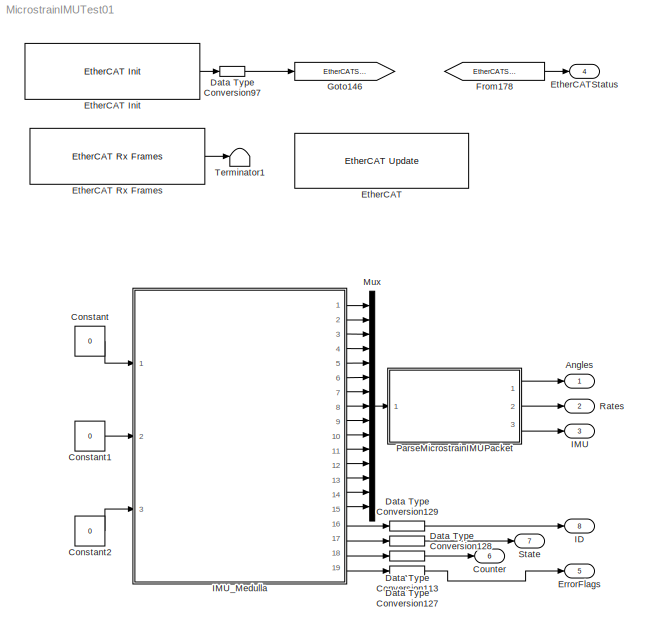
MODEL MicrostrainIMUTest01
KIND model
CONFIG InitFcn = IMU_Alignment_Params = [0 90 180];\n
BLOCK [Outport] Angles
  IconDisplay = Port number
  SID = 26
BLOCK [Constant] Constant
  SID = 28
  Value = 0
BLOCK [Constant] Constant1
  SID = 29
  Value = 0
BLOCK [Constant] Constant2
  SID = 30
  Value = 0
BLOCK [Outport] Counter
  IconDisplay = Port number
  Port = 6
  SID = 130
BLOCK [DataTypeConversion] Data Type Conversion113
  OutDataTypeStr = double
  RndMeth = Floor
  SID = 1
  SaturateOnIntegerOverflow = off
BLOCK [DataTypeConversion] Data Type Conversion127
  OutDataTypeStr = double
  RndMeth = Floor
  SID = 2
  SaturateOnIntegerOverflow = off
BLOCK [DataTypeConversion] Data Type Conversion128
  OutDataTypeStr = double
  RndMeth = Floor
  SID = 3
  SaturateOnIntegerOverflow = off
BLOCK [DataTypeConversion] Data Type Conversion129
  OutDataTypeStr = double
  RndMeth = Floor
  SID = 4
  SaturateOnIntegerOverflow = off
BLOCK [DataTypeConversion] Data Type Conversion97
  OutDataTypeStr = double
  RndMeth = Floor
  SID = 18
  SaturateOnIntegerOverflow = off
BLOCK [Outport] ErrorFlags
  IconDisplay = Port number
  Port = 5
  SID = 129
BLOCK [Reference] EtherCAT  REF=xpcethercatlib/EtherCAT Update 
  Ports = []
  Priority = 4
  SID = 19
  SourceBlock = xpcethercatlib/EtherCAT Update
  SourceType = xpcethercat_update
  device_id = 0
  task_id_list = [1]
  task_priorities = [1500]
  task_rates = [1]
BLOCK [Reference] EtherCAT Init  REF=xpcethercatlib/EtherCAT Init 
  Ports = [0, 1]
  Priority = 0
  SID = 20
  SourceBlock = xpcethercatlib/EtherCAT Init
  SourceType = xpcethercatinit
  config_file = 'microstrain_imu_eni.xml'
  device_id = 0
  enaDC = on
  errRptLevel = 0
  pci_bus = 4
  pci_slot = 4
  sample_time = -1
BLOCK [Reference] EtherCAT Rx Frames  REF=xpcethercatlib/EtherCAT Rx Frames 
  Ports = [0, 1]
  Priority = 1
  SID = 21
  SourceBlock = xpcethercatlib/EtherCAT Rx Frames
  SourceType = xpcethercat_rcvframes
  device_id = 0
  sample_time = 0
BLOCK [Outport] EtherCATStatus
  IconDisplay = Port number
  Port = 4
  SID = 25
BLOCK [From] From178
  GotoTag = EtherCATStatus
  SID = 22
BLOCK [Goto] Goto146
  GotoTag = EtherCATStatus
  SID = 23
BLOCK [Outport] ID
  IconDisplay = Port number
  Port = 8
  SID = 132
BLOCK [Outport] IMU
  IconDisplay = Port number
  Port = 3
  SID = 17
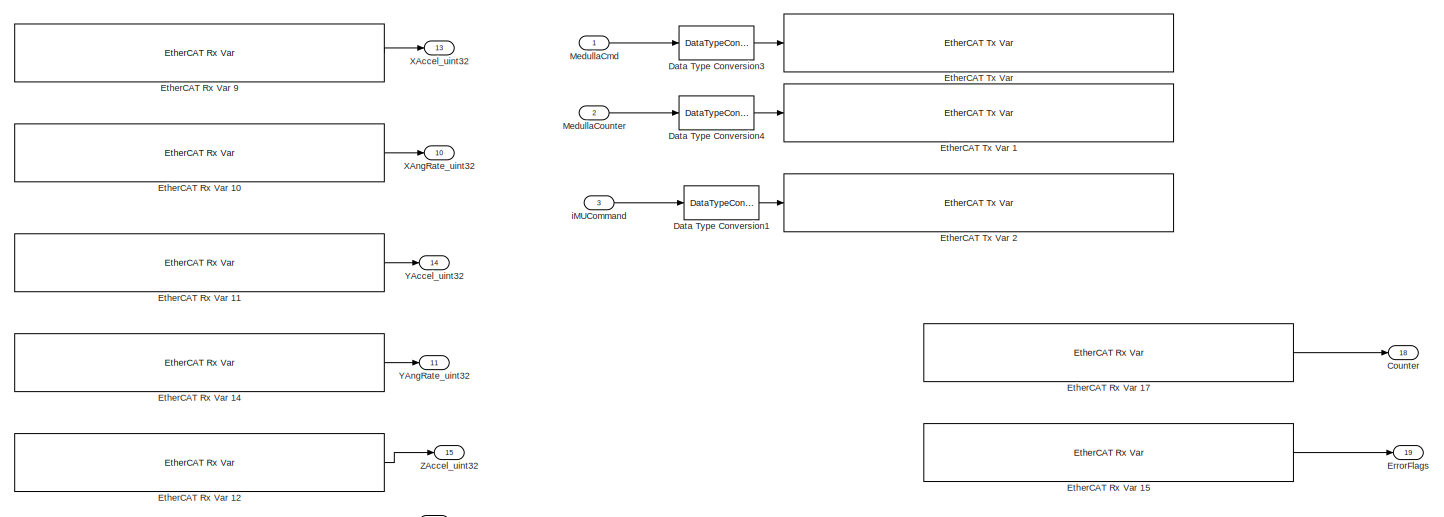
[diagram: IMU_Medulla - part 1/3, full width, top band]
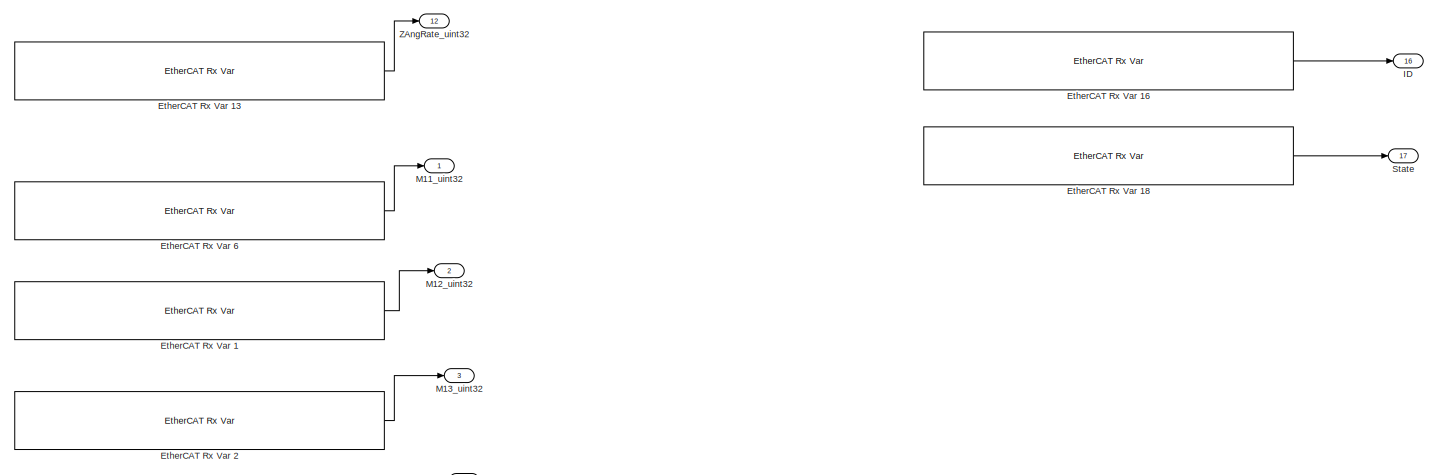
[diagram: IMU_Medulla - part 2/3, full width, middle band]
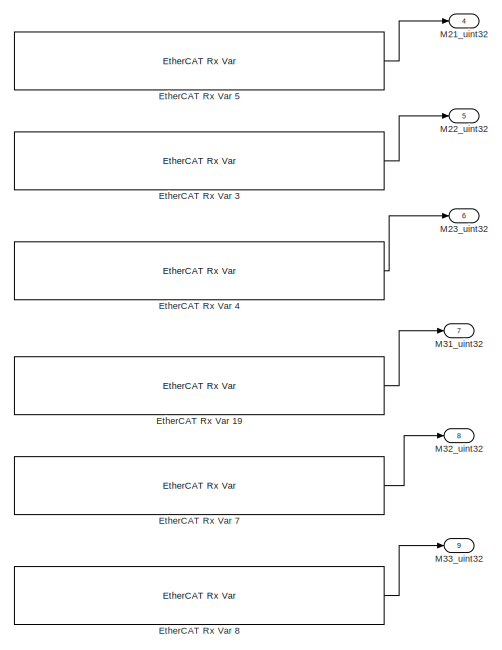
[diagram: IMU_Medulla - part 3/3, bottom left region]
BLOCK [SubSystem] IMU_Medulla
  FunctionWithSeparateData = off
  MaskHideContents = off
  MinAlgLoopOccurrences = off
  Opaque = off
  Ports = [3, 19]
  PropExecContextOutsideSubsystem = off
  RTWSystemCode = Auto
  RequestExecContextInheritance = off
  SID = 14
BLOCK [Outport] IMU_Medulla/Counter
  IconDisplay = Port number
  Port = 18
  SID = 91
BLOCK [DataTypeConversion] IMU_Medulla/Data Type Conversion1
  OutDataTypeStr = uint16
  RndMeth = Floor
  SID = 34
  SaturateOnIntegerOverflow = off
BLOCK [DataTypeConversion] IMU_Medulla/Data Type Conversion3
  OutDataTypeStr = uint8
  RndMeth = Floor
  SID = 35
  SaturateOnIntegerOverflow = off
BLOCK [DataTypeConversion] IMU_Medulla/Data Type Conversion4
  OutDataTypeStr = uint16
  RndMeth = Floor
  SID = 36
  SaturateOnIntegerOverflow = off
BLOCK [Outport] IMU_Medulla/ErrorFlags
  IconDisplay = Port number
  Port = 19
  SID = 92
BLOCK [Reference] IMU_Medulla/EtherCAT Rx Var 1  REF=xpcethercatlib/EtherCAT Rx Var 
  Ports = [0, 1]
  Priority = 2
  SID = 52
  SourceBlock = xpcethercatlib/EtherCAT Rx Var
  SourceType = xpcethercat_rx_var
  device_id = 0
  sample_time = 0.001000
  sig_dim = 1
  sig_name = Box 2 (ATRIAS 2.1 Microstrain IMU (Medulla 1.5)).M.M12
  sig_offset = 720
  sig_type = uint32
  type_size = 32
BLOCK [Reference] IMU_Medulla/EtherCAT Rx Var 10  REF=xpcethercatlib/EtherCAT Rx Var 
  Ports = [0, 1]
  Priority = 2
  SID = 53
  SourceBlock = xpcethercatlib/EtherCAT Rx Var
  SourceType = xpcethercat_rx_var
  device_id = 0
  sample_time = 0.001000
  sig_dim = 1
  sig_name = Box 2 (ATRIAS 2.1 Microstrain IMU (Medulla 1.5)).Xaxes.XAngRate
  sig_offset = 496
  sig_type = uint32
  type_size = 32
BLOCK [Reference] IMU_Medulla/EtherCAT Rx Var 11  REF=xpcethercatlib/EtherCAT Rx Var 
  Ports = [0, 1]
  Priority = 2
  SID = 54
  SourceBlock = xpcethercatlib/EtherCAT Rx Var
  SourceType = xpcethercat_rx_var
  device_id = 0
  sample_time = 0.001000
  sig_dim = 1
  sig_name = Box 2 (ATRIAS 2.1 Microstrain IMU (Medulla 1.5)).Yaxes.YAccel
  sig_offset = 592
  sig_type = uint32
  type_size = 32
BLOCK [Reference] IMU_Medulla/EtherCAT Rx Var 12  REF=xpcethercatlib/EtherCAT Rx Var 
  Ports = [0, 1]
  Priority = 2
  SID = 55
  SourceBlock = xpcethercatlib/EtherCAT Rx Var
  SourceType = xpcethercat_rx_var
  device_id = 0
  sample_time = 0.001000
  sig_dim = 1
  sig_name = Box 2 (ATRIAS 2.1 Microstrain IMU (Medulla 1.5)).Zaxes.ZAccel
  sig_offset = 656
  sig_type = uint32
  type_size = 32
BLOCK [Reference] IMU_Medulla/EtherCAT Rx Var 13  REF=xpcethercatlib/EtherCAT Rx Var 
  Ports = [0, 1]
  Priority = 2
  SID = 56
  SourceBlock = xpcethercatlib/EtherCAT Rx Var
  SourceType = xpcethercat_rx_var
  device_id = 0
  sample_time = 0.001000
  sig_dim = 1
  sig_name = Box 2 (ATRIAS 2.1 Microstrain IMU (Medulla 1.5)).Zaxes.ZAngRate
  sig_offset = 624
  sig_type = uint32
  type_size = 32
BLOCK [Reference] IMU_Medulla/EtherCAT Rx Var 14  REF=xpcethercatlib/EtherCAT Rx Var 
  Ports = [0, 1]
  Priority = 2
  SID = 57
  SourceBlock = xpcethercatlib/EtherCAT Rx Var
  SourceType = xpcethercat_rx_var
  device_id = 0
  sample_time = 0.001000
  sig_dim = 1
  sig_name = Box 2 (ATRIAS 2.1 Microstrain IMU (Medulla 1.5)).Yaxes.YAngRate
  sig_offset = 560
  sig_type = uint32
  type_size = 32
BLOCK [Reference] IMU_Medulla/EtherCAT Rx Var 15  REF=xpcethercatlib/EtherCAT Rx Var 
  Ports = [0, 1]
  Priority = 2
  SID = 58
  SourceBlock = xpcethercatlib/EtherCAT Rx Var
  SourceType = xpcethercat_rx_var
  device_id = 0
  sample_time = 0.001000
  sig_dim = 1
  sig_name = Box 2 (ATRIAS 2.1 Microstrain IMU (Medulla 1.5)).uController Status.Error Flags
  sig_offset = 488
  sig_type = uint8
  type_size = 8
BLOCK [Reference] IMU_Medulla/EtherCAT Rx Var 16  REF=xpcethercatlib/EtherCAT Rx Var 
  Ports = [0, 1]
  Priority = 2
  SID = 59
  SourceBlock = xpcethercatlib/EtherCAT Rx Var
  SourceType = xpcethercat_rx_var
  device_id = 0
  sample_time = 0.001000
  sig_dim = 1
  sig_name = Box 2 (ATRIAS 2.1 Microstrain IMU (Medulla 1.5)).uController Status.ID
  sig_offset = 464
  sig_type = uint8
  type_size = 8
BLOCK [Reference] IMU_Medulla/EtherCAT Rx Var 17  REF=xpcethercatlib/EtherCAT Rx Var 
  Ports = [0, 1]
  Priority = 2
  SID = 60
  SourceBlock = xpcethercatlib/EtherCAT Rx Var
  SourceType = xpcethercat_rx_var
  device_id = 0
  sample_time = 0.001000
  sig_dim = 1
  sig_name = Box 2 (ATRIAS 2.1 Microstrain IMU (Medulla 1.5)).uController Status.Counter
  sig_offset = 480
  sig_type = uint8
  type_size = 8
BLOCK [Reference] IMU_Medulla/EtherCAT Rx Var 18  REF=xpcethercatlib/EtherCAT Rx Var 
  Ports = [0, 1]
  Priority = 2
  SID = 61
  SourceBlock = xpcethercatlib/EtherCAT Rx Var
  SourceType = xpcethercat_rx_var
  device_id = 0
  sample_time = 0.001000
  sig_dim = 1
  sig_name = Box 2 (ATRIAS 2.1 Microstrain IMU (Medulla 1.5)).uController Status.State
  sig_offset = 472
  sig_type = uint8
  type_size = 8
BLOCK [Reference] IMU_Medulla/EtherCAT Rx Var 19  REF=xpcethercatlib/EtherCAT Rx Var 
  Ports = [0, 1]
  Priority = 2
  SID = 62
  SourceBlock = xpcethercatlib/EtherCAT Rx Var
  SourceType = xpcethercat_rx_var
  device_id = 0
  sample_time = 0.001000
  sig_dim = 1
  sig_name = Box 2 (ATRIAS 2.1 Microstrain IMU (Medulla 1.5)).M.M31
  sig_offset = 880
  sig_type = uint32
  type_size = 32
BLOCK [Reference] IMU_Medulla/EtherCAT Rx Var 2  REF=xpcethercatlib/EtherCAT Rx Var 
  Ports = [0, 1]
  Priority = 2
  SID = 63
  SourceBlock = xpcethercatlib/EtherCAT Rx Var
  SourceType = xpcethercat_rx_var
  device_id = 0
  sample_time = 0.001000
  sig_dim = 1
  sig_name = Box 2 (ATRIAS 2.1 Microstrain IMU (Medulla 1.5)).M.M13
  sig_offset = 752
  sig_type = uint32
  type_size = 32
BLOCK [Reference] IMU_Medulla/EtherCAT Rx Var 3  REF=xpcethercatlib/EtherCAT Rx Var 
  Ports = [0, 1]
  Priority = 2
  SID = 64
  SourceBlock = xpcethercatlib/EtherCAT Rx Var
  SourceType = xpcethercat_rx_var
  device_id = 0
  sample_time = 0.001000
  sig_dim = 1
  sig_name = Box 2 (ATRIAS 2.1 Microstrain IMU (Medulla 1.5)).M.M22
  sig_offset = 816
  sig_type = uint32
  type_size = 32
BLOCK [Reference] IMU_Medulla/EtherCAT Rx Var 4  REF=xpcethercatlib/EtherCAT Rx Var 
  Ports = [0, 1]
  Priority = 2
  SID = 65
  SourceBlock = xpcethercatlib/EtherCAT Rx Var
  SourceType = xpcethercat_rx_var
  device_id = 0
  sample_time = 0.001000
  sig_dim = 1
  sig_name = Box 2 (ATRIAS 2.1 Microstrain IMU (Medulla 1.5)).M.M23
  sig_offset = 848
  sig_type = uint32
  type_size = 32
BLOCK [Reference] IMU_Medulla/EtherCAT Rx Var 5  REF=xpcethercatlib/EtherCAT Rx Var 
  Ports = [0, 1]
  Priority = 2
  SID = 66
  SourceBlock = xpcethercatlib/EtherCAT Rx Var
  SourceType = xpcethercat_rx_var
  device_id = 0
  sample_time = 0.001000
  sig_dim = 1
  sig_name = Box 2 (ATRIAS 2.1 Microstrain IMU (Medulla 1.5)).M.M21
  sig_offset = 784
  sig_type = uint32
  type_size = 32
BLOCK [Reference] IMU_Medulla/EtherCAT Rx Var 6  REF=xpcethercatlib/EtherCAT Rx Var 
  Ports = [0, 1]
  Priority = 2
  SID = 67
  SourceBlock = xpcethercatlib/EtherCAT Rx Var
  SourceType = xpcethercat_rx_var
  device_id = 0
  sample_time = 0.001000
  sig_dim = 1
  sig_name = Box 2 (ATRIAS 2.1 Microstrain IMU (Medulla 1.5)).M.M11
  sig_offset = 688
  sig_type = uint32
  type_size = 32
BLOCK [Reference] IMU_Medulla/EtherCAT Rx Var 7  REF=xpcethercatlib/EtherCAT Rx Var 
  Ports = [0, 1]
  Priority = 2
  SID = 68
  SourceBlock = xpcethercatlib/EtherCAT Rx Var
  SourceType = xpcethercat_rx_var
  device_id = 0
  sample_time = 0.001000
  sig_dim = 1
  sig_name = Box 2 (ATRIAS 2.1 Microstrain IMU (Medulla 1.5)).M.M32
  sig_offset = 912
  sig_type = uint32
  type_size = 32
BLOCK [Reference] IMU_Medulla/EtherCAT Rx Var 8  REF=xpcethercatlib/EtherCAT Rx Var 
  Ports = [0, 1]
  Priority = 2
  SID = 69
  SourceBlock = xpcethercatlib/EtherCAT Rx Var
  SourceType = xpcethercat_rx_var
  device_id = 0
  sample_time = 0.001000
  sig_dim = 1
  sig_name = Box 2 (ATRIAS 2.1 Microstrain IMU (Medulla 1.5)).M.M33
  sig_offset = 944
  sig_type = uint32
  type_size = 32
BLOCK [Reference] IMU_Medulla/EtherCAT Rx Var 9  REF=xpcethercatlib/EtherCAT Rx Var 
  Ports = [0, 1]
  Priority = 2
  SID = 70
  SourceBlock = xpcethercatlib/EtherCAT Rx Var
  SourceType = xpcethercat_rx_var
  device_id = 0
  sample_time = 0.001000
  sig_dim = 1
  sig_name = Box 2 (ATRIAS 2.1 Microstrain IMU (Medulla 1.5)).Xaxes.XAccel
  sig_offset = 528
  sig_type = uint32
  type_size = 32
BLOCK [Reference] IMU_Medulla/EtherCAT Tx Var   REF=xpcethercatlib/EtherCAT Tx Var 
  Ports = [1]
  Priority = 3
  SID = 71
  SourceBlock = xpcethercatlib/EtherCAT Tx Var
  SourceType = xpcethercat_tx_var
  device_id = 0
  sample_time = 0.001000
  sig_dim = 1
  sig_name = Box 2 (ATRIAS 2.1 Microstrain IMU (Medulla 1.5)).uControllerInput.Command
  sig_offset = 464
  sig_type = uint8
  type_size = 8
BLOCK [Reference] IMU_Medulla/EtherCAT Tx Var 1  REF=xpcethercatlib/EtherCAT Tx Var 
  Ports = [1]
  Priority = 3
  SID = 72
  SourceBlock = xpcethercatlib/EtherCAT Tx Var
  SourceType = xpcethercat_tx_var
  device_id = 0
  sample_time = 0.001000
  sig_dim = 1
  sig_name = Box 2 (ATRIAS 2.1 Microstrain IMU (Medulla 1.5)).uControllerInput.Counter
  sig_offset = 472
  sig_type = uint16
  type_size = 16
BLOCK [Reference] IMU_Medulla/EtherCAT Tx Var 2  REF=xpcethercatlib/EtherCAT Tx Var 
  Ports = [1]
  Priority = 3
  SID = 73
  SourceBlock = xpcethercatlib/EtherCAT Tx Var
  SourceType = xpcethercat_tx_var
  device_id = 0
  sample_time = 0.001000
  sig_dim = 1
  sig_name = Box 2 (ATRIAS 2.1 Microstrain IMU (Medulla 1.5)).uControllerInput.IMU_cmd
  sig_offset = 488
  sig_type = uint16
  type_size = 16
BLOCK [Outport] IMU_Medulla/ID
  IconDisplay = Port number
  Port = 16
  SID = 89
BLOCK [Outport] IMU_Medulla/M11_uint32
  IconDisplay = Port number
  SID = 74
BLOCK [Outport] IMU_Medulla/M12_uint32
  IconDisplay = Port number
  Port = 2
  SID = 75
BLOCK [Outport] IMU_Medulla/M13_uint32
  IconDisplay = Port number
  Port = 3
  SID = 76
BLOCK [Outport] IMU_Medulla/M21_uint32
  IconDisplay = Port number
  Port = 4
  SID = 77
BLOCK [Outport] IMU_Medulla/M22_uint32
  IconDisplay = Port number
  Port = 5
  SID = 78
BLOCK [Outport] IMU_Medulla/M23_uint32
  IconDisplay = Port number
  Port = 6
  SID = 79
BLOCK [Outport] IMU_Medulla/M31_uint32
  IconDisplay = Port number
  Port = 7
  SID = 80
BLOCK [Outport] IMU_Medulla/M32_uint32
  IconDisplay = Port number
  Port = 8
  SID = 81
BLOCK [Outport] IMU_Medulla/M33_uint32
  IconDisplay = Port number
  Port = 9
  SID = 82
BLOCK [Inport] IMU_Medulla/MedullaCmd
  IconDisplay = Port number
  SID = 31
BLOCK [Inport] IMU_Medulla/MedullaCounter
  IconDisplay = Port number
  Port = 2
  SID = 32
BLOCK [Outport] IMU_Medulla/State
  IconDisplay = Port number
  Port = 17
  SID = 90
BLOCK [Outport] IMU_Medulla/XAccel_uint32
  IconDisplay = Port number
  Port = 13
  SID = 86
BLOCK [Outport] IMU_Medulla/XAngRate_uint32
  IconDisplay = Port number
  Port = 10
  SID = 83
BLOCK [Outport] IMU_Medulla/YAccel_uint32
  IconDisplay = Port number
  Port = 14
  SID = 87
BLOCK [Outport] IMU_Medulla/YAngRate_uint32
  IconDisplay = Port number
  Port = 11
  SID = 84
BLOCK [Outport] IMU_Medulla/ZAccel_uint32
  IconDisplay = Port number
  Port = 15
  SID = 88
BLOCK [Outport] IMU_Medulla/ZAngRate_uint32
  IconDisplay = Port number
  Port = 12
  SID = 85
BLOCK [Inport] IMU_Medulla/iMUCommand
  IconDisplay = Port number
  Port = 3
  SID = 33
BLOCK [Mux] Mux
  DisplayOption = bar
  Inputs = 15
  Ports = [15, 1]
  SID = 15
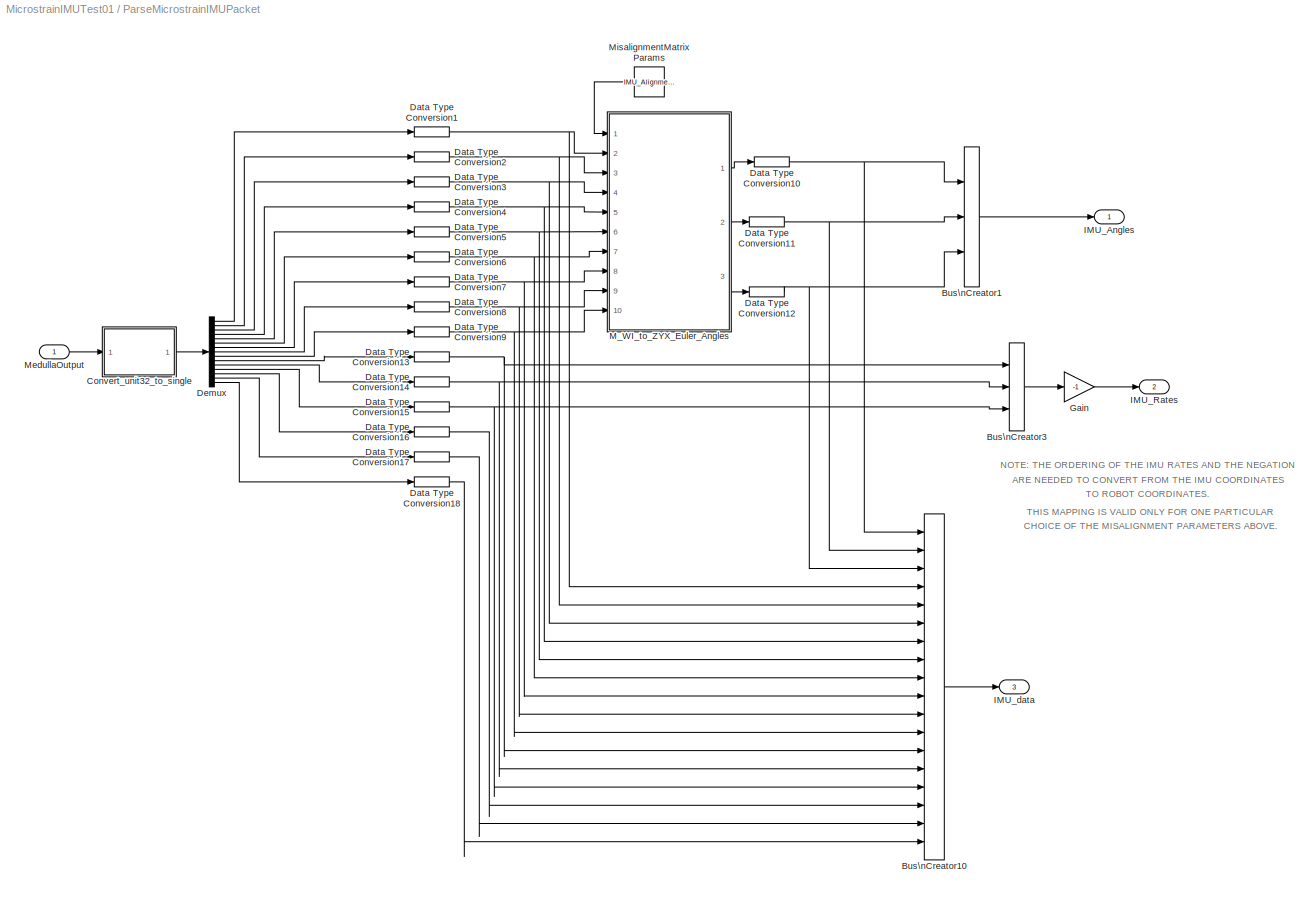
BLOCK [SubSystem] ParseMicrostrainIMUPacket
  FunctionWithSeparateData = off
  MaskHideContents = off
  MinAlgLoopOccurrences = off
  Opaque = off
  Ports = [1, 3]
  PropExecContextOutsideSubsystem = off
  RTWSystemCode = Auto
  RequestExecContextInheritance = off
  SID = 16
BLOCK [BusCreator] ParseMicrostrainIMUPacket/Bus\nCreator1
  DisplayOption = bar
  Inputs = 3
  Ports = [3, 1]
  SID = 95
BLOCK [BusCreator] ParseMicrostrainIMUPacket/Bus\nCreator10
  DisplayOption = bar
  Inputs = 18
  Ports = [18, 1]
  SID = 96
BLOCK [BusCreator] ParseMicrostrainIMUPacket/Bus\nCreator3
  DisplayOption = bar
  Inputs = 3
  Ports = [3, 1]
  SID = 97
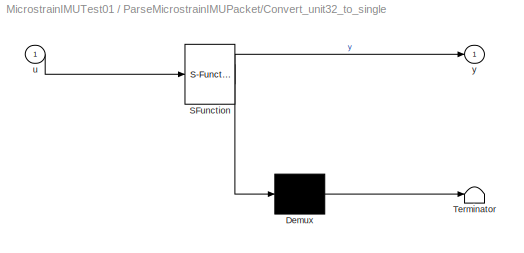
BLOCK [SubSystem] ParseMicrostrainIMUPacket/Convert_unit32_to_single
  ErrorFcn = Stateflow.Translate.translate
  FunctionWithSeparateData = off
  MaskHideContents = off
  MinAlgLoopOccurrences = off
  Opaque = off
  PermitHierarchicalResolution = ExplicitOnly
  Ports = [1, 1]
  PropExecContextOutsideSubsystem = off
  RTWSystemCode = Auto
  RequestExecContextInheritance = off
  SFBlockType = MATLAB Function
  SID = 98
  TreatAsAtomicUnit = on
BLOCK [Demux] ParseMicrostrainIMUPacket/Convert_unit32_to_single/ Demux 
  Outputs = 1
  Ports = [1, 1]
  SID = 98::23
BLOCK [S-Function] ParseMicrostrainIMUPacket/Convert_unit32_to_single/ SFunction 
  EnableBusSupport = on
  FunctionName = sf_sfun
  PortCounts = [1 2]
  Ports = [1, 2]
  SID = 98::22
  Tag = Stateflow S-Function MicrostrainIMUTest01 32
BLOCK [Terminator] ParseMicrostrainIMUPacket/Convert_unit32_to_single/ Terminator 
  SID = 98::24
BLOCK [Inport] ParseMicrostrainIMUPacket/Convert_unit32_to_single/u
  IconDisplay = Port number
  SID = 98::1
BLOCK [Outport] ParseMicrostrainIMUPacket/Convert_unit32_to_single/y
  IconDisplay = Port number
  SID = 98::5
BLOCK [DataTypeConversion] ParseMicrostrainIMUPacket/Data Type Conversion1
  OutDataTypeStr = double
  RndMeth = Floor
  SID = 99
  SaturateOnIntegerOverflow = off
BLOCK [DataTypeConversion] ParseMicrostrainIMUPacket/Data Type Conversion10
  OutDataTypeStr = double
  RndMeth = Floor
  SID = 100
  SaturateOnIntegerOverflow = off
BLOCK [DataTypeConversion] ParseMicrostrainIMUPacket/Data Type Conversion11
  OutDataTypeStr = double
  RndMeth = Floor
  SID = 101
  SaturateOnIntegerOverflow = off
BLOCK [DataTypeConversion] ParseMicrostrainIMUPacket/Data Type Conversion12
  OutDataTypeStr = double
  RndMeth = Floor
  SID = 102
  SaturateOnIntegerOverflow = off
BLOCK [DataTypeConversion] ParseMicrostrainIMUPacket/Data Type Conversion13
  OutDataTypeStr = double
  RndMeth = Floor
  SID = 103
  SaturateOnIntegerOverflow = off
BLOCK [DataTypeConversion] ParseMicrostrainIMUPacket/Data Type Conversion14
  OutDataTypeStr = double
  RndMeth = Floor
  SID = 104
  SaturateOnIntegerOverflow = off
BLOCK [DataTypeConversion] ParseMicrostrainIMUPacket/Data Type Conversion15
  OutDataTypeStr = double
  RndMeth = Floor
  SID = 105
  SaturateOnIntegerOverflow = off
BLOCK [DataTypeConversion] ParseMicrostrainIMUPacket/Data Type Conversion16
  OutDataTypeStr = double
  RndMeth = Floor
  SID = 106
  SaturateOnIntegerOverflow = off
BLOCK [DataTypeConversion] ParseMicrostrainIMUPacket/Data Type Conversion17
  OutDataTypeStr = double
  RndMeth = Floor
  SID = 107
  SaturateOnIntegerOverflow = off
BLOCK [DataTypeConversion] ParseMicrostrainIMUPacket/Data Type Conversion18
  OutDataTypeStr = double
  RndMeth = Floor
  SID = 108
  SaturateOnIntegerOverflow = off
BLOCK [DataTypeConversion] ParseMicrostrainIMUPacket/Data Type Conversion2
  OutDataTypeStr = double
  RndMeth = Floor
  SID = 109
  SaturateOnIntegerOverflow = off
BLOCK [DataTypeConversion] ParseMicrostrainIMUPacket/Data Type Conversion3
  OutDataTypeStr = double
  RndMeth = Floor
  SID = 110
  SaturateOnIntegerOverflow = off
BLOCK [DataTypeConversion] ParseMicrostrainIMUPacket/Data Type Conversion4
  OutDataTypeStr = double
  RndMeth = Floor
  SID = 111
  SaturateOnIntegerOverflow = off
BLOCK [DataTypeConversion] ParseMicrostrainIMUPacket/Data Type Conversion5
  OutDataTypeStr = double
  RndMeth = Floor
  SID = 112
  SaturateOnIntegerOverflow = off
BLOCK [DataTypeConversion] ParseMicrostrainIMUPacket/Data Type Conversion6
  OutDataTypeStr = double
  RndMeth = Floor
  SID = 113
  SaturateOnIntegerOverflow = off
BLOCK [DataTypeConversion] ParseMicrostrainIMUPacket/Data Type Conversion7
  OutDataTypeStr = double
  RndMeth = Floor
  SID = 114
  SaturateOnIntegerOverflow = off
BLOCK [DataTypeConversion] ParseMicrostrainIMUPacket/Data Type Conversion8
  OutDataTypeStr = double
  RndMeth = Floor
  SID = 115
  SaturateOnIntegerOverflow = off
BLOCK [DataTypeConversion] ParseMicrostrainIMUPacket/Data Type Conversion9
  OutDataTypeStr = double
  RndMeth = Floor
  SID = 116
  SaturateOnIntegerOverflow = off
BLOCK [Demux] ParseMicrostrainIMUPacket/Demux
  DisplayOption = bar
  Outputs = 15
  Ports = [1, 15]
  SID = 117
BLOCK [Gain] ParseMicrostrainIMUPacket/Gain
  Gain = -1
  OutDataTypeStr = Inherit: Inherit via internal rule
  ParamDataTypeStr = Inherit: Inherit via internal rule
  SID = 118
  SaturateOnIntegerOverflow = off
BLOCK [Outport] ParseMicrostrainIMUPacket/IMU_Angles
  IconDisplay = Port number
  SID = 121
BLOCK [Outport] ParseMicrostrainIMUPacket/IMU_Rates
  IconDisplay = Port number
  Port = 2
  SID = 122
BLOCK [Outport] ParseMicrostrainIMUPacket/IMU_data
  IconDisplay = Port number
  Port = 3
  SID = 123
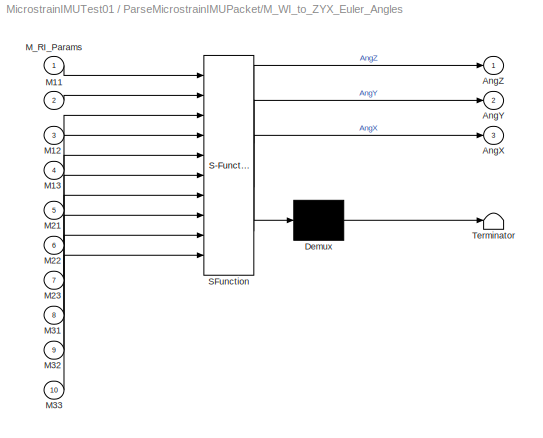
BLOCK [SubSystem] ParseMicrostrainIMUPacket/M_WI_to_ZYX_Euler_Angles
  ErrorFcn = Stateflow.Translate.translate
  FunctionWithSeparateData = off
  MaskHideContents = off
  MinAlgLoopOccurrences = off
  Opaque = off
  PermitHierarchicalResolution = ExplicitOnly
  Ports = [10, 3]
  PropExecContextOutsideSubsystem = off
  RTWSystemCode = Auto
  RequestExecContextInheritance = off
  SFBlockType = MATLAB Function
  SID = 119
  TreatAsAtomicUnit = on
BLOCK [Demux] ParseMicrostrainIMUPacket/M_WI_to_ZYX_Euler_Angles/ Demux 
  Outputs = 1
  Ports = [1, 1]
  SID = 119::46
BLOCK [S-Function] ParseMicrostrainIMUPacket/M_WI_to_ZYX_Euler_Angles/ SFunction 
  EnableBusSupport = on
  FunctionName = sf_sfun
  PortCounts = [10 4]
  Ports = [10, 4]
  SID = 119::45
  Tag = Stateflow S-Function MicrostrainIMUTest01 33
BLOCK [Terminator] ParseMicrostrainIMUPacket/M_WI_to_ZYX_Euler_Angles/ Terminator 
  SID = 119::47
BLOCK [Outport] ParseMicrostrainIMUPacket/M_WI_to_ZYX_Euler_Angles/AngX
  IconDisplay = Port number
  Port = 3
  SID = 119::28
BLOCK [Outport] ParseMicrostrainIMUPacket/M_WI_to_ZYX_Euler_Angles/AngY
  IconDisplay = Port number
  Port = 2
  SID = 119::27
BLOCK [Outport] ParseMicrostrainIMUPacket/M_WI_to_ZYX_Euler_Angles/AngZ
  IconDisplay = Port number
  SID = 119::5
BLOCK [Inport] ParseMicrostrainIMUPacket/M_WI_to_ZYX_Euler_Angles/M11
  IconDisplay = Port number
  Port = 2
  SID = 119::18
BLOCK [Inport] ParseMicrostrainIMUPacket/M_WI_to_ZYX_Euler_Angles/M12
  IconDisplay = Port number
  Port = 3
  SID = 119::19
BLOCK [Inport] ParseMicrostrainIMUPacket/M_WI_to_ZYX_Euler_Angles/M13
  IconDisplay = Port number
  Port = 4
  SID = 119::20
BLOCK [Inport] ParseMicrostrainIMUPacket/M_WI_to_ZYX_Euler_Angles/M21
  IconDisplay = Port number
  Port = 5
  SID = 119::21
BLOCK [Inport] ParseMicrostrainIMUPacket/M_WI_to_ZYX_Euler_Angles/M22
  IconDisplay = Port number
  Port = 6
  SID = 119::22
BLOCK [Inport] ParseMicrostrainIMUPacket/M_WI_to_ZYX_Euler_Angles/M23
  IconDisplay = Port number
  Port = 7
  SID = 119::23
BLOCK [Inport] ParseMicrostrainIMUPacket/M_WI_to_ZYX_Euler_Angles/M31
  IconDisplay = Port number
  Port = 8
  SID = 119::24
BLOCK [Inport] ParseMicrostrainIMUPacket/M_WI_to_ZYX_Euler_Angles/M32
  IconDisplay = Port number
  Port = 9
  SID = 119::25
BLOCK [Inport] ParseMicrostrainIMUPacket/M_WI_to_ZYX_Euler_Angles/M33
  IconDisplay = Port number
  Port = 10
  SID = 119::26
BLOCK [Inport] ParseMicrostrainIMUPacket/M_WI_to_ZYX_Euler_Angles/M_RI_Params
  IconDisplay = Port number
  SID = 119::1
BLOCK [Inport] ParseMicrostrainIMUPacket/MedullaOutput
  IconDisplay = Port number
  SID = 94
BLOCK [Constant] ParseMicrostrainIMUPacket/MisalignmentMatrixParams
  SID = 120
  Value = IMU_Alignment_Params
BLOCK [Outport] Rates
  IconDisplay = Port number
  Port = 2
  SID = 27
BLOCK [Outport] State
  IconDisplay = Port number
  Port = 7
  SID = 131
BLOCK [Terminator] Terminator1
  SID = 24
ANNOTATION ParseMicrostrainIMUPacket: ARE NEEDED TO CONVERT FROM THE IMU COORDINATES
ANNOTATION ParseMicrostrainIMUPacket: CHOICE OF THE MISALIGNMENT PARAMETERS ABOVE.
ANNOTATION ParseMicrostrainIMUPacket: NOTE: THE ORDERING OF THE IMU RATES AND THE NEGATION
ANNOTATION ParseMicrostrainIMUPacket: THIS MAPPING IS VALID ONLY FOR ONE PARTICULAR
ANNOTATION ParseMicrostrainIMUPacket: TO ROBOT COORDINATES.
LINE Constant1:1 -> IMU_Medulla:2
LINE Constant2:1 -> IMU_Medulla:3
LINE Constant:1 -> IMU_Medulla:1
LINE Data Type Conversion113:1 -> Counter:1
LINE Data Type Conversion127:1 -> ErrorFlags:1
LINE Data Type Conversion128:1 -> State:1
LINE Data Type Conversion129:1 -> ID:1
LINE Data Type Conversion97:1 -> Goto146:1
LINE EtherCAT Init:1 -> Data Type Conversion97:1
LINE EtherCAT Rx Frames:1 -> Terminator1:1
LINE From178:1 -> EtherCATStatus:1
LINE IMU_Medulla/Data Type Conversion1:1 -> IMU_Medulla/EtherCAT Tx Var 2:1
LINE IMU_Medulla/Data Type Conversion3:1 -> IMU_Medulla/EtherCAT Tx Var :1
LINE IMU_Medulla/Data Type Conversion4:1 -> IMU_Medulla/EtherCAT Tx Var 1:1
LINE IMU_Medulla/EtherCAT Rx Var 10:1 -> IMU_Medulla/XAngRate_uint32:1
LINE IMU_Medulla/EtherCAT Rx Var 11:1 -> IMU_Medulla/YAccel_uint32:1
LINE IMU_Medulla/EtherCAT Rx Var 12:1 -> IMU_Medulla/ZAccel_uint32:1
LINE IMU_Medulla/EtherCAT Rx Var 13:1 -> IMU_Medulla/ZAngRate_uint32:1
LINE IMU_Medulla/EtherCAT Rx Var 14:1 -> IMU_Medulla/YAngRate_uint32:1
LINE IMU_Medulla/EtherCAT Rx Var 15:1 -> IMU_Medulla/ErrorFlags:1
LINE IMU_Medulla/EtherCAT Rx Var 16:1 -> IMU_Medulla/ID:1
LINE IMU_Medulla/EtherCAT Rx Var 17:1 -> IMU_Medulla/Counter:1
LINE IMU_Medulla/EtherCAT Rx Var 18:1 -> IMU_Medulla/State:1
LINE IMU_Medulla/EtherCAT Rx Var 19:1 -> IMU_Medulla/M31_uint32:1
LINE IMU_Medulla/EtherCAT Rx Var 1:1 -> IMU_Medulla/M12_uint32:1
LINE IMU_Medulla/EtherCAT Rx Var 2:1 -> IMU_Medulla/M13_uint32:1
LINE IMU_Medulla/EtherCAT Rx Var 3:1 -> IMU_Medulla/M22_uint32:1
LINE IMU_Medulla/EtherCAT Rx Var 4:1 -> IMU_Medulla/M23_uint32:1
LINE IMU_Medulla/EtherCAT Rx Var 5:1 -> IMU_Medulla/M21_uint32:1
LINE IMU_Medulla/EtherCAT Rx Var 6:1 -> IMU_Medulla/M11_uint32:1
LINE IMU_Medulla/EtherCAT Rx Var 7:1 -> IMU_Medulla/M32_uint32:1
LINE IMU_Medulla/EtherCAT Rx Var 8:1 -> IMU_Medulla/M33_uint32:1
LINE IMU_Medulla/EtherCAT Rx Var 9:1 -> IMU_Medulla/XAccel_uint32:1
LINE IMU_Medulla/MedullaCmd:1 -> IMU_Medulla/Data Type Conversion3:1
LINE IMU_Medulla/MedullaCounter:1 -> IMU_Medulla/Data Type Conversion4:1
LINE IMU_Medulla/iMUCommand:1 -> IMU_Medulla/Data Type Conversion1:1
LINE IMU_Medulla:1 -> Mux:1
LINE IMU_Medulla:10 -> Mux:10
LINE IMU_Medulla:11 -> Mux:11
LINE IMU_Medulla:12 -> Mux:12
LINE IMU_Medulla:13 -> Mux:13
LINE IMU_Medulla:14 -> Mux:14
LINE IMU_Medulla:15 -> Mux:15
LINE IMU_Medulla:16 -> Data Type Conversion129:1
LINE IMU_Medulla:17 -> Data Type Conversion128:1
LINE IMU_Medulla:18 -> Data Type Conversion113:1
LINE IMU_Medulla:19 -> Data Type Conversion127:1
LINE IMU_Medulla:2 -> Mux:2
LINE IMU_Medulla:3 -> Mux:3
LINE IMU_Medulla:4 -> Mux:4
LINE IMU_Medulla:5 -> Mux:5
LINE IMU_Medulla:6 -> Mux:6
LINE IMU_Medulla:7 -> Mux:7
LINE IMU_Medulla:8 -> Mux:8
LINE IMU_Medulla:9 -> Mux:9
LINE Mux:1 -> ParseMicrostrainIMUPacket:1
LINE ParseMicrostrainIMUPacket/Bus\nCreator10:1 -> ParseMicrostrainIMUPacket/IMU_data:1
LINE ParseMicrostrainIMUPacket/Bus\nCreator1:1 -> ParseMicrostrainIMUPacket/IMU_Angles:1
LINE ParseMicrostrainIMUPacket/Bus\nCreator3:1 -> ParseMicrostrainIMUPacket/Gain:1
LINE ParseMicrostrainIMUPacket/Convert_unit32_to_single/ Demux :1 -> ParseMicrostrainIMUPacket/Convert_unit32_to_single/ Terminator :1
LINE ParseMicrostrainIMUPacket/Convert_unit32_to_single/ SFunction :1 -> ParseMicrostrainIMUPacket/Convert_unit32_to_single/ Demux :1
LINE ParseMicrostrainIMUPacket/Convert_unit32_to_single/ SFunction :2 -> ParseMicrostrainIMUPacket/Convert_unit32_to_single/y:1
LINE ParseMicrostrainIMUPacket/Convert_unit32_to_single/u:1 -> ParseMicrostrainIMUPacket/Convert_unit32_to_single/ SFunction :1
LINE ParseMicrostrainIMUPacket/Convert_unit32_to_single:1 -> ParseMicrostrainIMUPacket/Demux:1
NET ParseMicrostrainIMUPacket/Data Type Conversion10:1 -> ParseMicrostrainIMUPacket/Bus\nCreator10:1, ParseMicrostrainIMUPacket/Bus\nCreator1:1
NET ParseMicrostrainIMUPacket/Data Type Conversion11:1 -> ParseMicrostrainIMUPacket/Bus\nCreator10:2, ParseMicrostrainIMUPacket/Bus\nCreator1:2
NET ParseMicrostrainIMUPacket/Data Type Conversion12:1 -> ParseMicrostrainIMUPacket/Bus\nCreator10:3, ParseMicrostrainIMUPacket/Bus\nCreator1:3
NET ParseMicrostrainIMUPacket/Data Type Conversion13:1 -> ParseMicrostrainIMUPacket/Bus\nCreator10:13, ParseMicrostrainIMUPacket/Bus\nCreator3:1
NET ParseMicrostrainIMUPacket/Data Type Conversion14:1 -> ParseMicrostrainIMUPacket/Bus\nCreator10:14, ParseMicrostrainIMUPacket/Bus\nCreator3:2
NET ParseMicrostrainIMUPacket/Data Type Conversion15:1 -> ParseMicrostrainIMUPacket/Bus\nCreator10:15, ParseMicrostrainIMUPacket/Bus\nCreator3:3
LINE ParseMicrostrainIMUPacket/Data Type Conversion16:1 -> ParseMicrostrainIMUPacket/Bus\nCreator10:16
LINE ParseMicrostrainIMUPacket/Data Type Conversion17:1 -> ParseMicrostrainIMUPacket/Bus\nCreator10:17
LINE ParseMicrostrainIMUPacket/Data Type Conversion18:1 -> ParseMicrostrainIMUPacket/Bus\nCreator10:18
NET ParseMicrostrainIMUPacket/Data Type Conversion1:1 -> ParseMicrostrainIMUPacket/Bus\nCreator10:4, ParseMicrostrainIMUPacket/M_WI_to_ZYX_Euler_Angles:2
NET ParseMicrostrainIMUPacket/Data Type Conversion2:1 -> ParseMicrostrainIMUPacket/Bus\nCreator10:5, ParseMicrostrainIMUPacket/M_WI_to_ZYX_Euler_Angles:3
NET ParseMicrostrainIMUPacket/Data Type Conversion3:1 -> ParseMicrostrainIMUPacket/Bus\nCreator10:6, ParseMicrostrainIMUPacket/M_WI_to_ZYX_Euler_Angles:4
NET ParseMicrostrainIMUPacket/Data Type Conversion4:1 -> ParseMicrostrainIMUPacket/Bus\nCreator10:7, ParseMicrostrainIMUPacket/M_WI_to_ZYX_Euler_Angles:5
NET ParseMicrostrainIMUPacket/Data Type Conversion5:1 -> ParseMicrostrainIMUPacket/Bus\nCreator10:8, ParseMicrostrainIMUPacket/M_WI_to_ZYX_Euler_Angles:6
NET ParseMicrostrainIMUPacket/Data Type Conversion6:1 -> ParseMicrostrainIMUPacket/Bus\nCreator10:9, ParseMicrostrainIMUPacket/M_WI_to_ZYX_Euler_Angles:7
NET ParseMicrostrainIMUPacket/Data Type Conversion7:1 -> ParseMicrostrainIMUPacket/Bus\nCreator10:10, ParseMicrostrainIMUPacket/M_WI_to_ZYX_Euler_Angles:8
NET ParseMicrostrainIMUPacket/Data Type Conversion8:1 -> ParseMicrostrainIMUPacket/Bus\nCreator10:11, ParseMicrostrainIMUPacket/M_WI_to_ZYX_Euler_Angles:9
NET ParseMicrostrainIMUPacket/Data Type Conversion9:1 -> ParseMicrostrainIMUPacket/Bus\nCreator10:12, ParseMicrostrainIMUPacket/M_WI_to_ZYX_Euler_Angles:10
LINE ParseMicrostrainIMUPacket/Demux:1 -> ParseMicrostrainIMUPacket/Data Type Conversion1:1
LINE ParseMicrostrainIMUPacket/Demux:10 -> ParseMicrostrainIMUPacket/Data Type Conversion13:1
LINE ParseMicrostrainIMUPacket/Demux:11 -> ParseMicrostrainIMUPacket/Data Type Conversion14:1
LINE ParseMicrostrainIMUPacket/Demux:12 -> ParseMicrostrainIMUPacket/Data Type Conversion15:1
LINE ParseMicrostrainIMUPacket/Demux:13 -> ParseMicrostrainIMUPacket/Data Type Conversion16:1
LINE ParseMicrostrainIMUPacket/Demux:14 -> ParseMicrostrainIMUPacket/Data Type Conversion17:1
LINE ParseMicrostrainIMUPacket/Demux:15 -> ParseMicrostrainIMUPacket/Data Type Conversion18:1
LINE ParseMicrostrainIMUPacket/Demux:2 -> ParseMicrostrainIMUPacket/Data Type Conversion2:1
LINE ParseMicrostrainIMUPacket/Demux:3 -> ParseMicrostrainIMUPacket/Data Type Conversion3:1
LINE ParseMicrostrainIMUPacket/Demux:4 -> ParseMicrostrainIMUPacket/Data Type Conversion4:1
LINE ParseMicrostrainIMUPacket/Demux:5 -> ParseMicrostrainIMUPacket/Data Type Conversion5:1
LINE ParseMicrostrainIMUPacket/Demux:6 -> ParseMicrostrainIMUPacket/Data Type Conversion6:1
LINE ParseMicrostrainIMUPacket/Demux:7 -> ParseMicrostrainIMUPacket/Data Type Conversion7:1
LINE ParseMicrostrainIMUPacket/Demux:8 -> ParseMicrostrainIMUPacket/Data Type Conversion8:1
LINE ParseMicrostrainIMUPacket/Demux:9 -> ParseMicrostrainIMUPacket/Data Type Conversion9:1
LINE ParseMicrostrainIMUPacket/Gain:1 -> ParseMicrostrainIMUPacket/IMU_Rates:1
LINE ParseMicrostrainIMUPacket/M_WI_to_ZYX_Euler_Angles/ Demux :1 -> ParseMicrostrainIMUPacket/M_WI_to_ZYX_Euler_Angles/ Terminator :1
LINE ParseMicrostrainIMUPacket/M_WI_to_ZYX_Euler_Angles/ SFunction :1 -> ParseMicrostrainIMUPacket/M_WI_to_ZYX_Euler_Angles/ Demux :1
LINE ParseMicrostrainIMUPacket/M_WI_to_ZYX_Euler_Angles/ SFunction :2 -> ParseMicrostrainIMUPacket/M_WI_to_ZYX_Euler_Angles/AngZ:1
LINE ParseMicrostrainIMUPacket/M_WI_to_ZYX_Euler_Angles/ SFunction :3 -> ParseMicrostrainIMUPacket/M_WI_to_ZYX_Euler_Angles/AngY:1
LINE ParseMicrostrainIMUPacket/M_WI_to_ZYX_Euler_Angles/ SFunction :4 -> ParseMicrostrainIMUPacket/M_WI_to_ZYX_Euler_Angles/AngX:1
LINE ParseMicrostrainIMUPacket/M_WI_to_ZYX_Euler_Angles/M11:1 -> ParseMicrostrainIMUPacket/M_WI_to_ZYX_Euler_Angles/ SFunction :2
LINE ParseMicrostrainIMUPacket/M_WI_to_ZYX_Euler_Angles/M12:1 -> ParseMicrostrainIMUPacket/M_WI_to_ZYX_Euler_Angles/ SFunction :3
LINE ParseMicrostrainIMUPacket/M_WI_to_ZYX_Euler_Angles/M13:1 -> ParseMicrostrainIMUPacket/M_WI_to_ZYX_Euler_Angles/ SFunction :4
LINE ParseMicrostrainIMUPacket/M_WI_to_ZYX_Euler_Angles/M21:1 -> ParseMicrostrainIMUPacket/M_WI_to_ZYX_Euler_Angles/ SFunction :5
LINE ParseMicrostrainIMUPacket/M_WI_to_ZYX_Euler_Angles/M22:1 -> ParseMicrostrainIMUPacket/M_WI_to_ZYX_Euler_Angles/ SFunction :6
LINE ParseMicrostrainIMUPacket/M_WI_to_ZYX_Euler_Angles/M23:1 -> ParseMicrostrainIMUPacket/M_WI_to_ZYX_Euler_Angles/ SFunction :7
LINE ParseMicrostrainIMUPacket/M_WI_to_ZYX_Euler_Angles/M31:1 -> ParseMicrostrainIMUPacket/M_WI_to_ZYX_Euler_Angles/ SFunction :8
LINE ParseMicrostrainIMUPacket/M_WI_to_ZYX_Euler_Angles/M32:1 -> ParseMicrostrainIMUPacket/M_WI_to_ZYX_Euler_Angles/ SFunction :9
LINE ParseMicrostrainIMUPacket/M_WI_to_ZYX_Euler_Angles/M33:1 -> ParseMicrostrainIMUPacket/M_WI_to_ZYX_Euler_Angles/ SFunction :10
LINE ParseMicrostrainIMUPacket/M_WI_to_ZYX_Euler_Angles/M_RI_Params:1 -> ParseMicrostrainIMUPacket/M_WI_to_ZYX_Euler_Angles/ SFunction :1
LINE ParseMicrostrainIMUPacket/M_WI_to_ZYX_Euler_Angles:1 -> ParseMicrostrainIMUPacket/Data Type Conversion10:1
LINE ParseMicrostrainIMUPacket/M_WI_to_ZYX_Euler_Angles:2 -> ParseMicrostrainIMUPacket/Data Type Conversion11:1
LINE ParseMicrostrainIMUPacket/M_WI_to_ZYX_Euler_Angles:3 -> ParseMicrostrainIMUPacket/Data Type Conversion12:1
LINE ParseMicrostrainIMUPacket/MedullaOutput:1 -> ParseMicrostrainIMUPacket/Convert_unit32_to_single:1
LINE ParseMicrostrainIMUPacket/MisalignmentMatrixParams:1 -> ParseMicrostrainIMUPacket/M_WI_to_ZYX_Euler_Angles:1
LINE ParseMicrostrainIMUPacket:1 -> Angles:1
LINE ParseMicrostrainIMUPacket:2 -> Rates:1
LINE ParseMicrostrainIMUPacket:3 -> IMU:1
note: NET lines group one-source signal fan-out (src -> all destinations, sorted); 1:1 wires keep LINE
CHART ParseMicrostrainIMUPacket/Convert_unit32_to_single states=1 transitions=1
  STATE_LABEL 'eML_blk_kernel()'
CHART ParseMicrostrainIMUPacket/M_WI_to_ZYX_Euler_Angles states=1 transitions=1
  STATE_LABEL 'eML_blk_kernel()'
